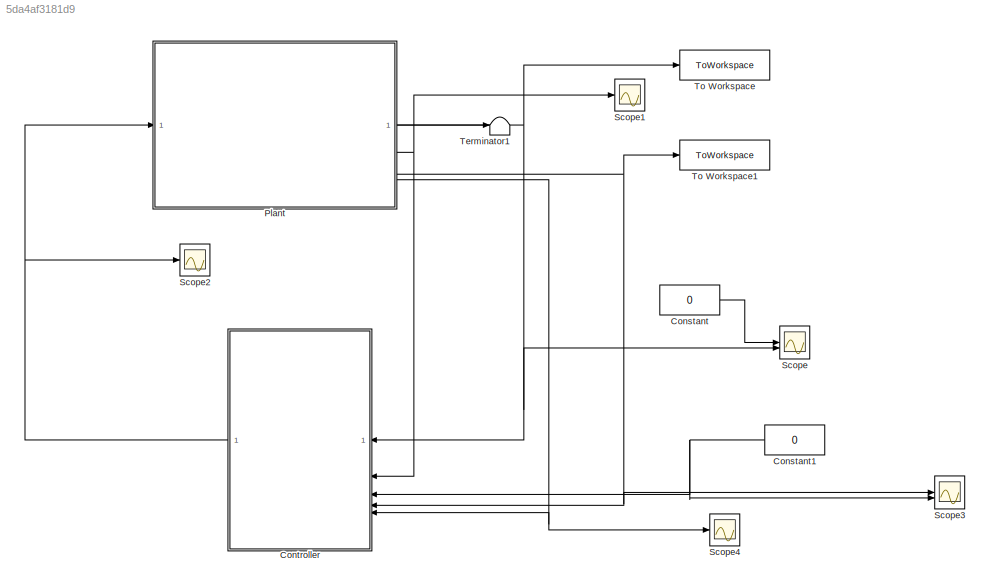
MODEL slx_5da4af3181d9
KIND model
CONFIG AbsTol = auto
CONFIG EnableMultiTasking = off
CONFIG FixedStep = auto
CONFIG MaxStep = auto
CONFIG MinStep = auto
CONFIG RelTol = 1e-3
CONFIG SampleTimeConstraint = Unconstrained
CONFIG SolverName = VariableStepAuto
CONFIG StartTime = 0.0
CONFIG StopTime = 500
BLOCK [Constant] Constant
  Value = 0
BLOCK [Constant] Constant1
  Value = 0
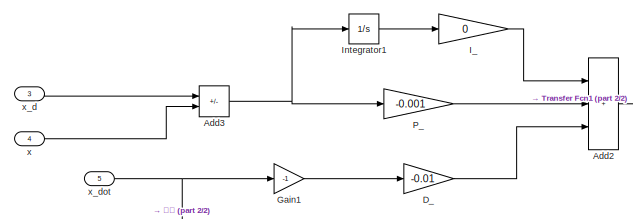
[diagram: Controller - part 1/2, top left region]
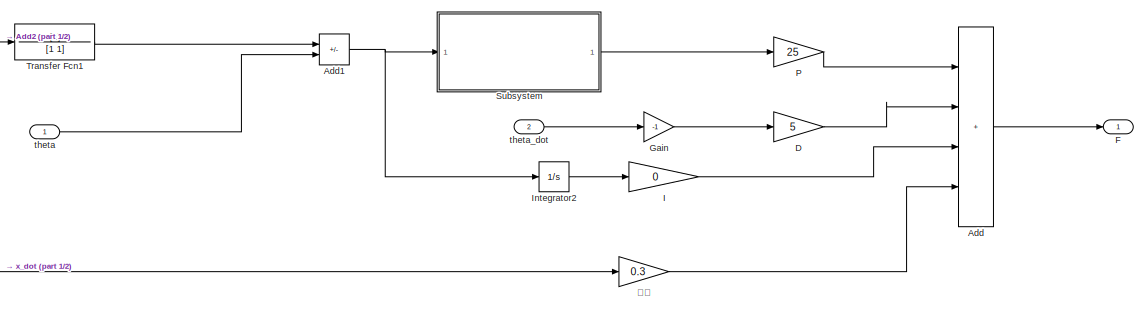
[diagram: Controller - part 2/2, right side, full height]
BLOCK [SubSystem] Controller
BLOCK [Sum] Controller/Add
  IconShape = rectangular
  Inputs = ++++
BLOCK [Sum] Controller/Add1
  IconShape = rectangular
  Inputs = +-
BLOCK [Sum] Controller/Add2
  IconShape = rectangular
  Inputs = +++
BLOCK [Sum] Controller/Add3
  IconShape = rectangular
  Inputs = +-
BLOCK [Gain] Controller/D
  Gain = 5
BLOCK [Gain] Controller/D_
  Gain = -0.01
BLOCK [Outport] Controller/F
BLOCK [Gain] Controller/Gain
  Gain = -1
BLOCK [Gain] Controller/Gain1
  Gain = -1
BLOCK [Gain] Controller/I
  Gain = 0
BLOCK [Gain] Controller/I_
  Gain = 0
BLOCK [Integrator] Controller/Integrator1
BLOCK [Integrator] Controller/Integrator2
BLOCK [Gain] Controller/P
  Gain = 25
BLOCK [Gain] Controller/P_
  Gain = -0.001
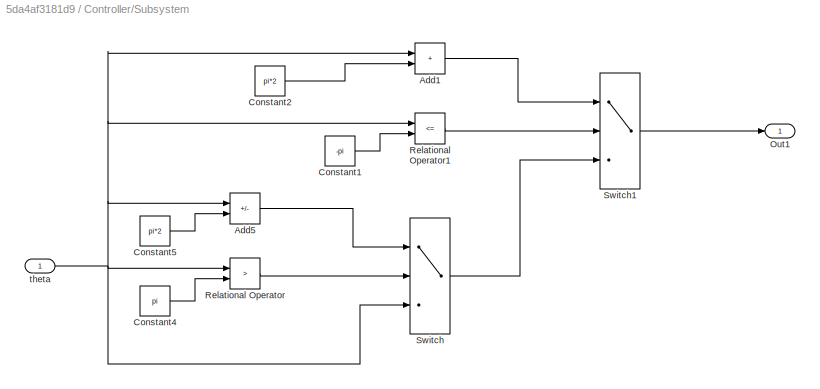
BLOCK [SubSystem] Controller/Subsystem
  AttributesFormatString = 保证角度值在正负180°之间
BLOCK [Sum] Controller/Subsystem/Add1
  IconShape = rectangular
BLOCK [Sum] Controller/Subsystem/Add5
  IconShape = rectangular
  Inputs = +-
BLOCK [Constant] Controller/Subsystem/Constant1
  Value = -pi
BLOCK [Constant] Controller/Subsystem/Constant2
  Value = pi*2
BLOCK [Constant] Controller/Subsystem/Constant4
  Value = pi
BLOCK [Constant] Controller/Subsystem/Constant5
  Value = pi*2
BLOCK [Outport] Controller/Subsystem/Out1
BLOCK [RelationalOperator] Controller/Subsystem/Relational Operator
  InputSameDT = off
  Operator = >
  OutDataTypeStr = boolean
  RndMeth = Simplest
BLOCK [RelationalOperator] Controller/Subsystem/Relational Operator1
  InputSameDT = off
  Operator = <=
  OutDataTypeStr = boolean
  RndMeth = Simplest
BLOCK [Switch] Controller/Subsystem/Switch
  AttributesFormatString = 保证角度值不越过+180°
  Criteria = u2 ~= 0
  InputSameDT = off
  SaturateOnIntegerOverflow = off
BLOCK [Switch] Controller/Subsystem/Switch1
  AttributesFormatString = 保证角度值不越过-180°
  Criteria = u2 ~= 0
  InputSameDT = off
  SaturateOnIntegerOverflow = off
BLOCK [Inport] Controller/Subsystem/theta
BLOCK [TransferFcn] Controller/Transfer Fcn1
  Denominator = [1 1]
BLOCK [Inport] Controller/theta
BLOCK [Inport] Controller/theta_dot
  Port = 2
BLOCK [Inport] Controller/x
  Port = 4
BLOCK [Inport] Controller/x_d
  Port = 3
BLOCK [Inport] Controller/x_dot
  Port = 5
BLOCK [Gain] Controller/补偿
  Gain = 0.3
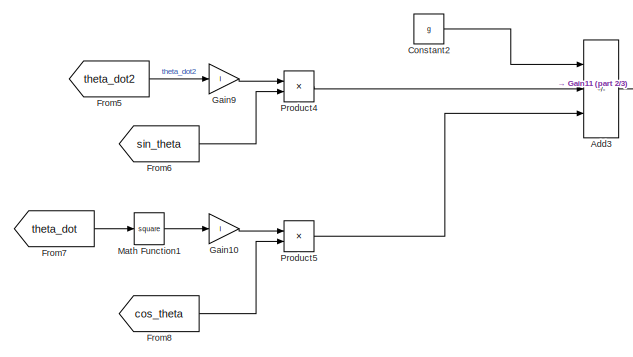
[diagram: Plant - part 1/3, top left region]
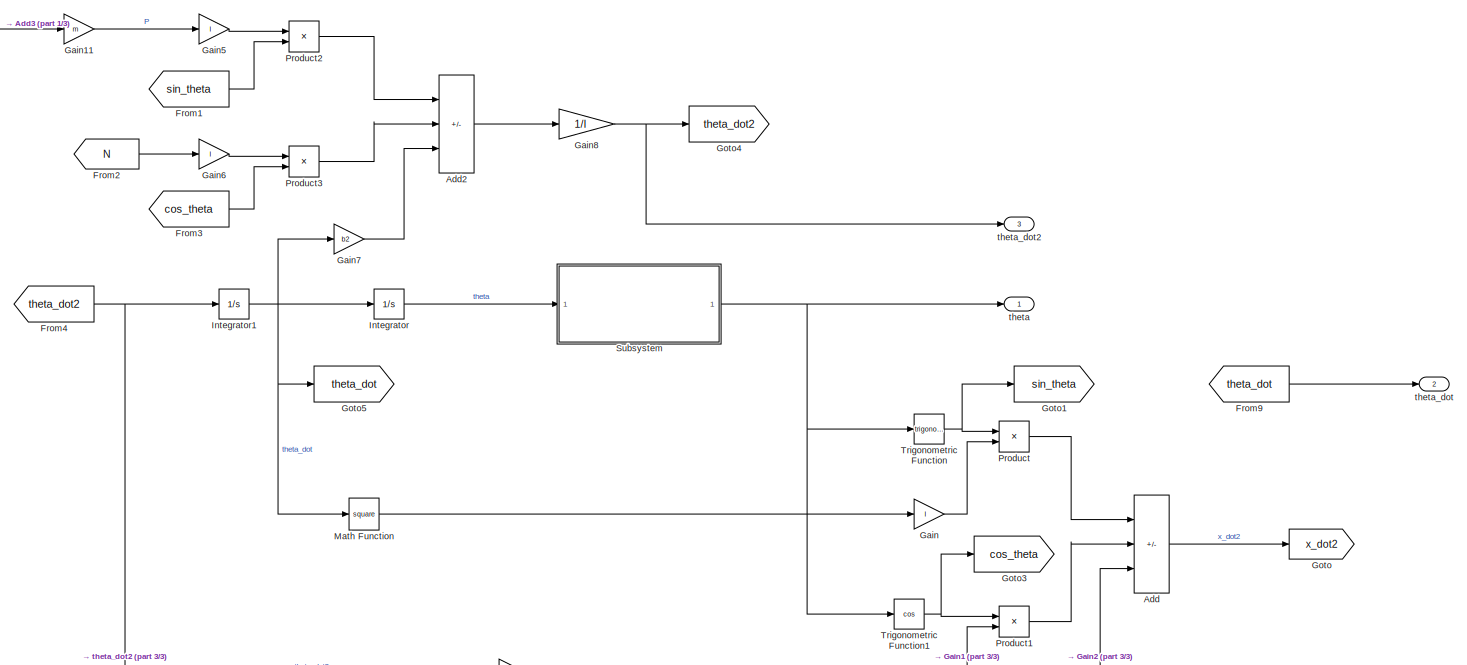
[diagram: Plant - part 2/3, top center region]
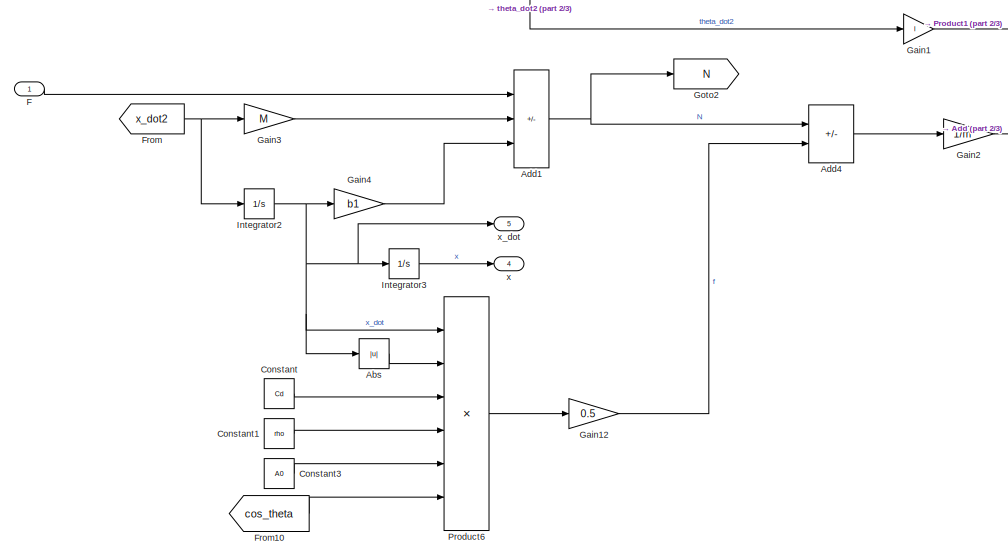
[diagram: Plant - part 3/3, bottom center region]
BLOCK [SubSystem] Plant
BLOCK [Abs] Plant/Abs
  SaturateOnIntegerOverflow = off
BLOCK [Sum] Plant/Add
  IconShape = rectangular
  Inputs = -++
BLOCK [Sum] Plant/Add1
  IconShape = rectangular
  Inputs = +--
BLOCK [Sum] Plant/Add2
  IconShape = rectangular
  Inputs = ++-
BLOCK [Sum] Plant/Add3
  IconShape = rectangular
  Inputs = +--
BLOCK [Sum] Plant/Add4
  IconShape = rectangular
  Inputs = +-
BLOCK [Constant] Plant/Constant
  Value = Cd
BLOCK [Constant] Plant/Constant1
  Value = rho
BLOCK [Constant] Plant/Constant2
  Value = g
BLOCK [Constant] Plant/Constant3
  Value = A0
BLOCK [Inport] Plant/F
BLOCK [From] Plant/From
  GotoTag = x_dot2
BLOCK [From] Plant/From1
  GotoTag = sin_theta
BLOCK [From] Plant/From10
  GotoTag = cos_theta
BLOCK [From] Plant/From2
  GotoTag = N
BLOCK [From] Plant/From3
  GotoTag = cos_theta
BLOCK [From] Plant/From4
  GotoTag = theta_dot2
BLOCK [From] Plant/From5
  GotoTag = theta_dot2
BLOCK [From] Plant/From6
  GotoTag = sin_theta
BLOCK [From] Plant/From7
  GotoTag = theta_dot
BLOCK [From] Plant/From8
  GotoTag = cos_theta
BLOCK [From] Plant/From9
  GotoTag = theta_dot
BLOCK [Gain] Plant/Gain
  Gain = l
BLOCK [Gain] Plant/Gain1
  Gain = l
BLOCK [Gain] Plant/Gain10
  Gain = l
BLOCK [Gain] Plant/Gain11
  Gain = m
BLOCK [Gain] Plant/Gain12
  Gain = 0.5
BLOCK [Gain] Plant/Gain2
  Gain = 1/m
BLOCK [Gain] Plant/Gain3
  Gain = M
BLOCK [Gain] Plant/Gain4
  Gain = b1
BLOCK [Gain] Plant/Gain5
  Gain = l
BLOCK [Gain] Plant/Gain6
  Gain = l
BLOCK [Gain] Plant/Gain7
  Gain = b2
BLOCK [Gain] Plant/Gain8
  Gain = 1/I
BLOCK [Gain] Plant/Gain9
  Gain = l
BLOCK [Goto] Plant/Goto
  GotoTag = x_dot2
BLOCK [Goto] Plant/Goto1
  GotoTag = sin_theta
BLOCK [Goto] Plant/Goto2
  GotoTag = N
BLOCK [Goto] Plant/Goto3
  GotoTag = cos_theta
BLOCK [Goto] Plant/Goto4
  GotoTag = theta_dot2
BLOCK [Goto] Plant/Goto5
  GotoTag = theta_dot
BLOCK [Integrator] Plant/Integrator
  InitialCondition = theta0
BLOCK [Integrator] Plant/Integrator1
BLOCK [Integrator] Plant/Integrator2
BLOCK [Integrator] Plant/Integrator3
BLOCK [Math] Plant/Math Function
  Operator = square
BLOCK [Math] Plant/Math Function1
  Operator = square
BLOCK [Product] Plant/Product
BLOCK [Product] Plant/Product1
BLOCK [Product] Plant/Product2
BLOCK [Product] Plant/Product3
BLOCK [Product] Plant/Product4
BLOCK [Product] Plant/Product5
BLOCK [Product] Plant/Product6
  Inputs = 6
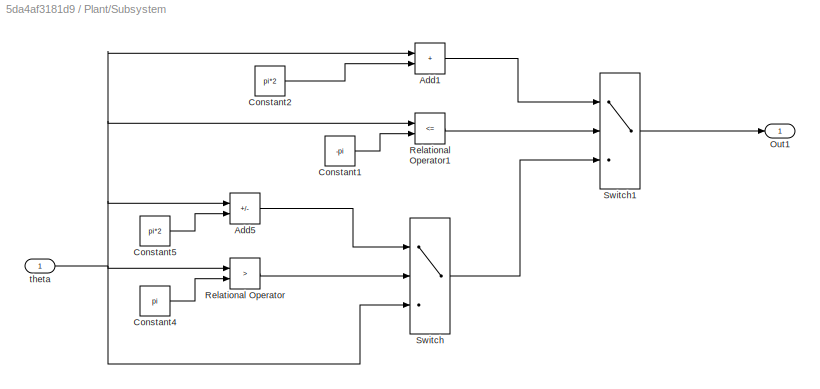
BLOCK [SubSystem] Plant/Subsystem
  AttributesFormatString = 保证角度值在正负180°之间
BLOCK [Sum] Plant/Subsystem/Add1
  IconShape = rectangular
BLOCK [Sum] Plant/Subsystem/Add5
  IconShape = rectangular
  Inputs = +-
BLOCK [Constant] Plant/Subsystem/Constant1
  Value = -pi
BLOCK [Constant] Plant/Subsystem/Constant2
  Value = pi*2
BLOCK [Constant] Plant/Subsystem/Constant4
  Value = pi
BLOCK [Constant] Plant/Subsystem/Constant5
  Value = pi*2
BLOCK [Outport] Plant/Subsystem/Out1
BLOCK [RelationalOperator] Plant/Subsystem/Relational Operator
  InputSameDT = off
  Operator = >
  OutDataTypeStr = boolean
  RndMeth = Simplest
BLOCK [RelationalOperator] Plant/Subsystem/Relational Operator1
  InputSameDT = off
  Operator = <=
  OutDataTypeStr = boolean
  RndMeth = Simplest
BLOCK [Switch] Plant/Subsystem/Switch
  AttributesFormatString = 保证角度值不越过+180°
  Criteria = u2 ~= 0
  InputSameDT = off
  SaturateOnIntegerOverflow = off
BLOCK [Switch] Plant/Subsystem/Switch1
  AttributesFormatString = 保证角度值不越过-180°
  Criteria = u2 ~= 0
  InputSameDT = off
  SaturateOnIntegerOverflow = off
BLOCK [Inport] Plant/Subsystem/theta
BLOCK [Trigonometry] Plant/Trigonometric Function
BLOCK [Trigonometry] Plant/Trigonometric Function1
  Operator = cos
BLOCK [Outport] Plant/theta
BLOCK [Outport] Plant/theta_dot
  Port = 2
BLOCK [Outport] Plant/theta_dot2
  Port = 3
BLOCK [Outport] Plant/x
  Port = 4
BLOCK [Outport] Plant/x_dot
  Port = 5
BLOCK [Scope] Scope
  Floating = off
  NumInputPorts = 2
  ScopeSpecificationString = Simulink.scopes.TimeScopeBlockCfg('CurrentConfiguration', extmgr.ConfigurationSet(extmgr.Configuration('Core','General UI',true),extmgr.Configuration('Core','Source UI',true),extmgr.Configuration('Sources','WiredSimulink',true),extmgr.Configuration('Visuals','Time Domain',true,'SerializedDisplays',{struct('MinYLimReal','-0.19026','MaxYLimReal','0.60292','YLabelReal','','MinYLimMag','0.00000','MaxY...<+1525ch>
BLOCK [Scope] Scope1
  Floating = off
  NumInputPorts = 1
  ScopeSpecificationString = Simulink.scopes.TimeScopeBlockCfg('CurrentConfiguration', extmgr.ConfigurationSet(extmgr.Configuration('Core','General UI',true),extmgr.Configuration('Core','Source UI',true),extmgr.Configuration('Sources','WiredSimulink',true,'DataLoggingVariableName','ScopeData1'),extmgr.Configuration('Visuals','Time Domain',true,'SerializedDisplays',{struct('MinYLimReal','-40.98704','MaxYLimReal','41.54513','YL...<+1530ch>
BLOCK [Scope] Scope2
  Floating = off
  NumInputPorts = 1
  ScopeSpecificationString = Simulink.scopes.TimeScopeBlockCfg('CurrentConfiguration', extmgr.ConfigurationSet(extmgr.Configuration('Core','General UI',true),extmgr.Configuration('Core','Source UI',true),extmgr.Configuration('Sources','WiredSimulink',true,'DataLoggingVariableName','ScopeData2'),extmgr.Configuration('Visuals','Time Domain',true,'SerializedDisplays',{struct('MinYLimReal','-1785.10276','MaxYLimReal','484.84885',...<+1549ch>
BLOCK [Scope] Scope3
  Floating = off
  NumInputPorts = 2
  ScopeSpecificationString = Simulink.scopes.TimeScopeBlockCfg('CurrentConfiguration', extmgr.ConfigurationSet(extmgr.Configuration('Core','General UI',true),extmgr.Configuration('Core','Source UI',true),extmgr.Configuration('Sources','WiredSimulink',true,'DataLoggingVariableName','ScopeData1'),extmgr.Configuration('Visuals','Time Domain',true,'SerializedDisplays',{struct('MinYLimReal','-8.29877','MaxYLimReal','0.92209','YLab...<+1566ch>
BLOCK [Scope] Scope4
  Floating = off
  NumInputPorts = 1
  ScopeSpecificationString = Simulink.scopes.TimeScopeBlockCfg('CurrentConfiguration', extmgr.ConfigurationSet(extmgr.Configuration('Core','General UI',true),extmgr.Configuration('Core','Source UI',true),extmgr.Configuration('Sources','WiredSimulink',true,'DataLoggingVariableName','ScopeData1'),extmgr.Configuration('Visuals','Time Domain',true,'SerializedDisplays',{struct('MinYLimReal','-3.06499','MaxYLimReal','0.34058','YLab...<+1558ch>
BLOCK [Terminator] Terminator1
BLOCK [ToWorkspace] To Workspace
  FixptAsFi = on
  MaxDataPoints = inf
  SampleTime = -1
  SaveFormat = Timeseries
  VariableName = theta
BLOCK [ToWorkspace] To Workspace1
  FixptAsFi = on
  MaxDataPoints = inf
  SampleTime = -1
  SaveFormat = Timeseries
  VariableName = x
NET Constant1:1 -> Controller:3, Scope3:2
LINE Constant:1 -> Scope:1
NET Controller/Add1:1 -> Controller/Integrator2:1, Controller/Subsystem:1
LINE Controller/Add2:1 -> Controller/Transfer Fcn1:1
NET Controller/Add3:1 -> Controller/Integrator1:1, Controller/P_:1
LINE Controller/Add:1 -> Controller/F:1
LINE Controller/D:1 -> Controller/Add:2
LINE Controller/D_:1 -> Controller/Add2:3
LINE Controller/Gain1:1 -> Controller/D_:1
LINE Controller/Gain:1 -> Controller/D:1
LINE Controller/I:1 -> Controller/Add:3
LINE Controller/I_:1 -> Controller/Add2:1
LINE Controller/Integrator1:1 -> Controller/I_:1
LINE Controller/Integrator2:1 -> Controller/I:1
LINE Controller/P:1 -> Controller/Add:1
LINE Controller/P_:1 -> Controller/Add2:2
LINE Controller/Subsystem/Add1:1 -> Controller/Subsystem/Switch1:1
LINE Controller/Subsystem/Add5:1 -> Controller/Subsystem/Switch:1
LINE Controller/Subsystem/Constant1:1 -> Controller/Subsystem/Relational Operator1:2
LINE Controller/Subsystem/Constant2:1 -> Controller/Subsystem/Add1:2
LINE Controller/Subsystem/Constant4:1 -> Controller/Subsystem/Relational Operator:2
LINE Controller/Subsystem/Constant5:1 -> Controller/Subsystem/Add5:2
LINE Controller/Subsystem/Relational Operator1:1 -> Controller/Subsystem/Switch1:2
LINE Controller/Subsystem/Relational Operator:1 -> Controller/Subsystem/Switch:2
LINE Controller/Subsystem/Switch1:1 -> Controller/Subsystem/Out1:1
LINE Controller/Subsystem/Switch:1 -> Controller/Subsystem/Switch1:3
NET Controller/Subsystem/theta:1 -> Controller/Subsystem/Add1:1, Controller/Subsystem/Add5:1, Controller/Subsystem/Relational Operator1:1, Controller/Subsystem/Relational Operator:1, Controller/Subsystem/Switch:3
LINE Controller/Subsystem:1 -> Controller/P:1
LINE Controller/Transfer Fcn1:1 -> Controller/Add1:1
LINE Controller/theta:1 -> Controller/Add1:2
LINE Controller/theta_dot:1 -> Controller/Gain:1
LINE Controller/x:1 -> Controller/Add3:2
LINE Controller/x_d:1 -> Controller/Add3:1
NET Controller/x_dot:1 -> Controller/Gain1:1, Controller/补偿:1
LINE Controller/补偿:1 -> Controller/Add:4
NET Controller:1 -> Plant:1, Scope2:1
LINE Plant/Abs:1 -> Plant/Product6:2
NET Plant/Add1:1 -> Plant/Add4:1, Plant/Goto2:1
LINE Plant/Add2:1 -> Plant/Gain8:1
LINE Plant/Add3:1 -> Plant/Gain11:1
LINE Plant/Add4:1 -> Plant/Gain2:1
LINE Plant/Add:1 -> Plant/Goto:1
LINE Plant/Constant1:1 -> Plant/Product6:4
LINE Plant/Constant2:1 -> Plant/Add3:1
LINE Plant/Constant3:1 -> Plant/Product6:5
LINE Plant/Constant:1 -> Plant/Product6:3
LINE Plant/F:1 -> Plant/Add1:1
LINE Plant/From10:1 -> Plant/Product6:6
LINE Plant/From1:1 -> Plant/Product2:2
LINE Plant/From2:1 -> Plant/Gain6:1
LINE Plant/From3:1 -> Plant/Product3:2
NET Plant/From4:1 -> Plant/Gain1:1, Plant/Integrator1:1
LINE Plant/From5:1 -> Plant/Gain9:1
LINE Plant/From6:1 -> Plant/Product4:2
LINE Plant/From7:1 -> Plant/Math Function1:1
LINE Plant/From8:1 -> Plant/Product5:2
LINE Plant/From9:1 -> Plant/theta_dot:1
NET Plant/From:1 -> Plant/Gain3:1, Plant/Integrator2:1
LINE Plant/Gain10:1 -> Plant/Product5:1
LINE Plant/Gain11:1 -> Plant/Gain5:1
LINE Plant/Gain12:1 -> Plant/Add4:2
LINE Plant/Gain1:1 -> Plant/Product1:2
LINE Plant/Gain2:1 -> Plant/Add:3
LINE Plant/Gain3:1 -> Plant/Add1:2
LINE Plant/Gain4:1 -> Plant/Add1:3
LINE Plant/Gain5:1 -> Plant/Product2:1
LINE Plant/Gain6:1 -> Plant/Product3:1
LINE Plant/Gain7:1 -> Plant/Add2:3
NET Plant/Gain8:1 -> Plant/Goto4:1, Plant/theta_dot2:1
LINE Plant/Gain9:1 -> Plant/Product4:1
LINE Plant/Gain:1 -> Plant/Product:2
NET Plant/Integrator1:1 -> Plant/Gain7:1, Plant/Goto5:1, Plant/Integrator:1, Plant/Math Function:1
NET Plant/Integrator2:1 -> Plant/Abs:1, Plant/Gain4:1, Plant/Integrator3:1, Plant/Product6:1, Plant/x_dot:1
LINE Plant/Integrator3:1 -> Plant/x:1
LINE Plant/Integrator:1 -> Plant/Subsystem:1
LINE Plant/Math Function1:1 -> Plant/Gain10:1
LINE Plant/Math Function:1 -> Plant/Gain:1
LINE Plant/Product1:1 -> Plant/Add:2
LINE Plant/Product2:1 -> Plant/Add2:1
LINE Plant/Product3:1 -> Plant/Add2:2
LINE Plant/Product4:1 -> Plant/Add3:2
LINE Plant/Product5:1 -> Plant/Add3:3
LINE Plant/Product6:1 -> Plant/Gain12:1
LINE Plant/Product:1 -> Plant/Add:1
LINE Plant/Subsystem/Add1:1 -> Plant/Subsystem/Switch1:1
LINE Plant/Subsystem/Add5:1 -> Plant/Subsystem/Switch:1
LINE Plant/Subsystem/Constant1:1 -> Plant/Subsystem/Relational Operator1:2
LINE Plant/Subsystem/Constant2:1 -> Plant/Subsystem/Add1:2
LINE Plant/Subsystem/Constant4:1 -> Plant/Subsystem/Relational Operator:2
LINE Plant/Subsystem/Constant5:1 -> Plant/Subsystem/Add5:2
LINE Plant/Subsystem/Relational Operator1:1 -> Plant/Subsystem/Switch1:2
LINE Plant/Subsystem/Relational Operator:1 -> Plant/Subsystem/Switch:2
LINE Plant/Subsystem/Switch1:1 -> Plant/Subsystem/Out1:1
LINE Plant/Subsystem/Switch:1 -> Plant/Subsystem/Switch1:3
NET Plant/Subsystem/theta:1 -> Plant/Subsystem/Add1:1, Plant/Subsystem/Add5:1, Plant/Subsystem/Relational Operator1:1, Plant/Subsystem/Relational Operator:1, Plant/Subsystem/Switch:3
NET Plant/Subsystem:1 -> Plant/Trigonometric Function1:1, Plant/Trigonometric Function:1, Plant/theta:1
NET Plant/Trigonometric Function1:1 -> Plant/Goto3:1, Plant/Product1:1
NET Plant/Trigonometric Function:1 -> Plant/Goto1:1, Plant/Product:1
NET Plant:1 -> Controller:1, Scope:2, To Workspace:1
NET Plant:2 -> Controller:2, Scope1:1
LINE Plant:3 -> Terminator1:1
NET Plant:4 -> Controller:4, Scope3:1, To Workspace1:1
NET Plant:5 -> Controller:5, Scope4:1
note: NET lines group one-source signal fan-out (src -> all destinations, sorted); 1:1 wires keep LINE
